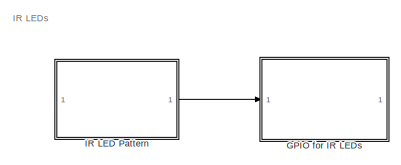
[diagram: root canvas - part 1/10, top right region]
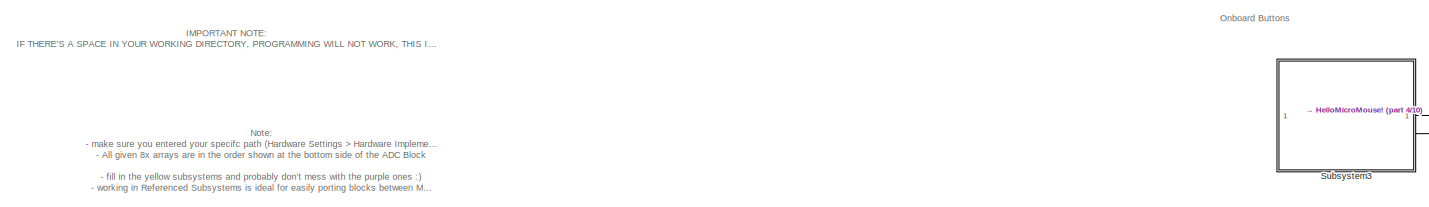
[diagram: root canvas - part 2/10, top center region]
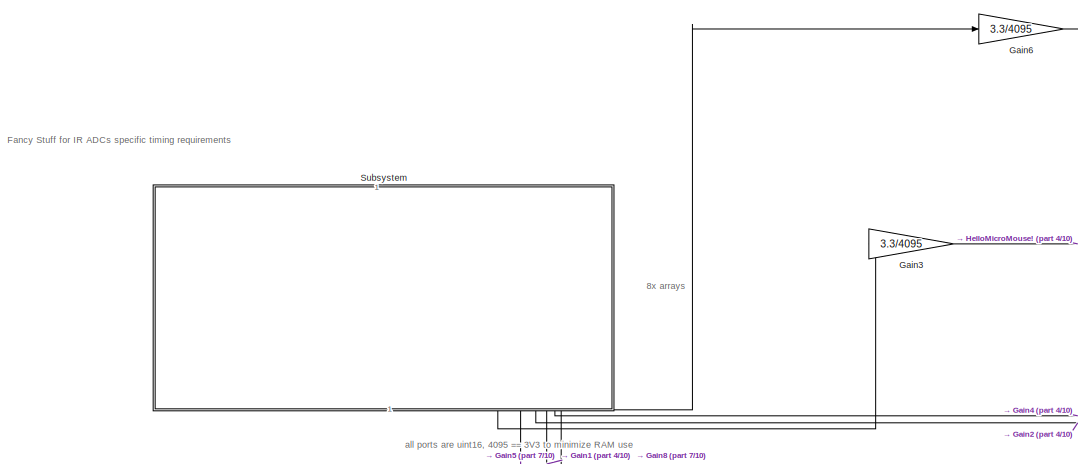
[diagram: root canvas - part 3/10, middle left region]
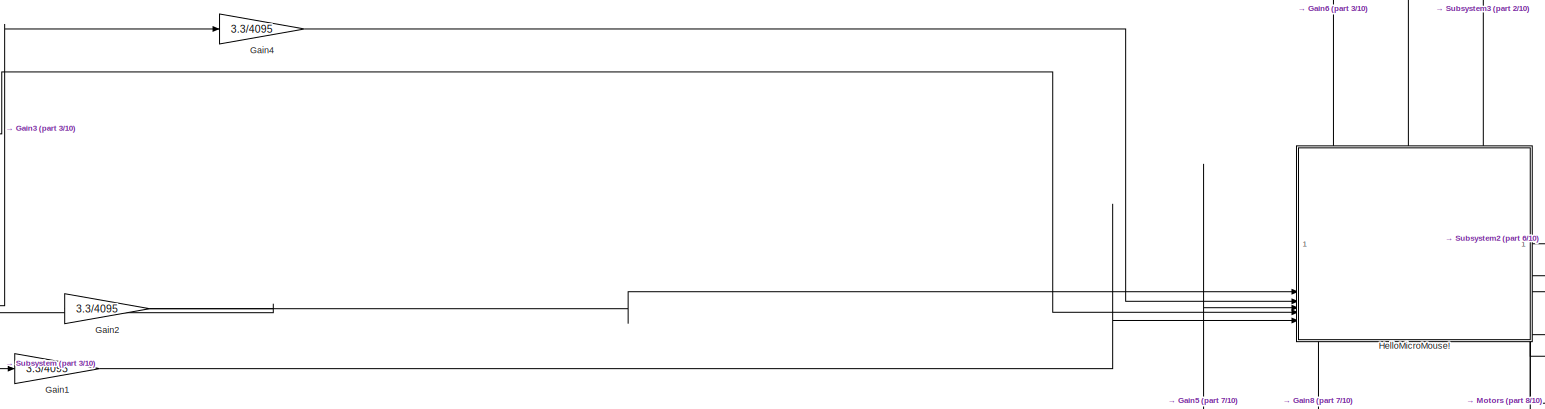
[diagram: root canvas - part 4/10, central region]
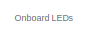
[diagram: root canvas - part 5/10, middle right region]
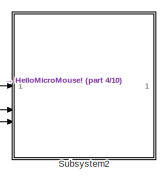
[diagram: root canvas - part 6/10, middle right region]
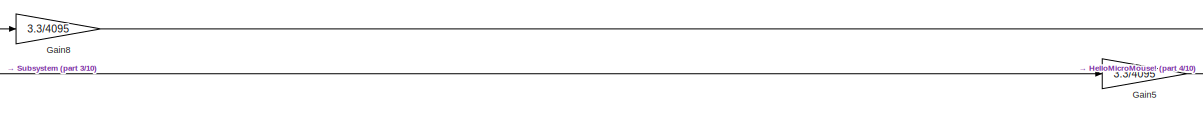
[diagram: root canvas - part 7/10, central region]
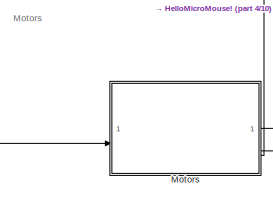
[diagram: root canvas - part 8/10, bottom right region]
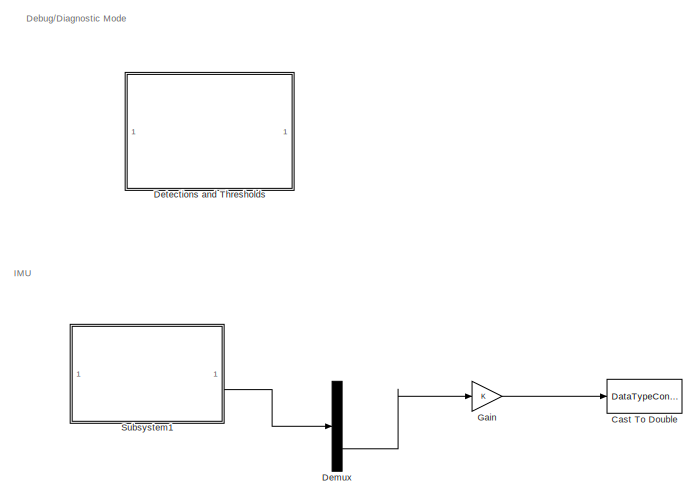
[diagram: root canvas - part 9/10, bottom left region]
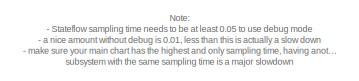
[diagram: root canvas - part 10/10, bottom center region]
MODEL slx_692beb6b2928
KIND model
CONFIG AbsTol = auto
CONFIG EnableMultiTasking = on
CONFIG FixedStep = auto
CONFIG MaxStep = auto
CONFIG MinStep = auto
CONFIG RelTol = 1e-3
CONFIG SampleTimeConstraint = Unconstrained
CONFIG SolverName = FixedStepAuto
CONFIG StartTime = 0.0
CONFIG StopTime = 0.1
BLOCK [DataTypeConversion] Cast To Double
  OutDataTypeStr = double
  RndMeth = Floor
  SaturateOnIntegerOverflow = off
BLOCK [Demux] Demux
  Outputs = 3
BLOCK [SubSystem] Detections and Thresholds
  ReferencedSubsystem = DiagnosticMode
BLOCK [SubSystem] GPIO for IR LEDs
  ReferencedSubsystem = IR_LEDs
  SystemSampleTime = samplingTime
  TreatAsAtomicUnit = on
BLOCK [Gain] Gain
BLOCK [Gain] Gain1
  Gain = 3.3/4095
  OutDataTypeStr = single
BLOCK [Gain] Gain2
  Gain = 3.3/4095
  OutDataTypeStr = single
BLOCK [Gain] Gain3
  Gain = 3.3/4095
  OutDataTypeStr = single
BLOCK [Gain] Gain4
  Gain = 3.3/4095
  OutDataTypeStr = single
BLOCK [Gain] Gain5
  Gain = 3.3/4095
  OutDataTypeStr = single
BLOCK [Gain] Gain6
  Gain = 3.3/4095
  OutDataTypeStr = single
BLOCK [Gain] Gain8
  Gain = 3.3/4095
  OutDataTypeStr = single
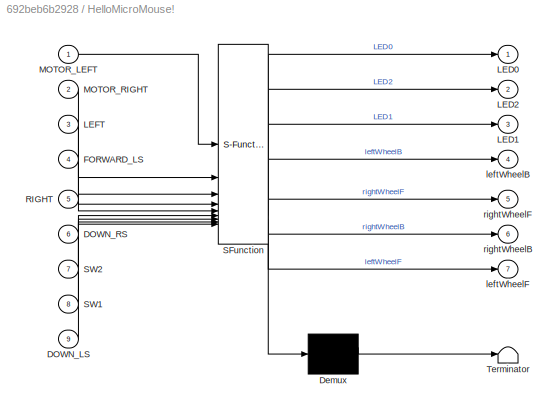
BLOCK [SubSystem] HelloMicroMouse!
  ErrorFcn = Stateflow.Translate.translate
  PermitHierarchicalResolution = ExplicitOnly
  PortSchema = {"entries":[{"content":{"sides":[{"content":{"connectorIds":["In5","In9","In4","In6","In3"]},"type":"ConnectorPlacement.EquallySpacedRectSide","uuid":"f52daa4f-6374-42e5-9ef1-0ccc99d09b58"},{"content":{"connectorIds":["Out1","Out2","Out3"],"side":"RIGHT"},"type":"ConnectorPlacement.EquallySpacedRectSide","uuid":"94b478cc-4dde-45c7-a588-77cf2b43cdb7"},{"content":{"connectorIds":["In2","In7","In8"],...<+472ch>
  SFBlockType = Chart
  TreatAsAtomicUnit = on
BLOCK [Demux] HelloMicroMouse!/ Demux 
  Outputs = 1
BLOCK [S-Function] HelloMicroMouse!/ SFunction 
  EnableBusSupport = on
  FunctionName = sf_sfun
  PortCounts = [9 8]
  SFcnIsStateOwnerBlock = off
  SFunctionDeploymentMode = off
  Tag = Stateflow S-Function 2
BLOCK [Terminator] HelloMicroMouse!/ Terminator 
BLOCK [Inport] HelloMicroMouse!/DOWN_LS
  Port = 9
BLOCK [Inport] HelloMicroMouse!/DOWN_RS
  Port = 6
BLOCK [Inport] HelloMicroMouse!/FORWARD_LS
  Port = 4
BLOCK [Outport] HelloMicroMouse!/LED0
BLOCK [Outport] HelloMicroMouse!/LED1
  Port = 3
BLOCK [Outport] HelloMicroMouse!/LED2
  Port = 2
BLOCK [Inport] HelloMicroMouse!/LEFT
  Port = 3
BLOCK [Inport] HelloMicroMouse!/MOTOR_LEFT
BLOCK [Inport] HelloMicroMouse!/MOTOR_RIGHT
  Port = 2
BLOCK [Inport] HelloMicroMouse!/RIGHT
  Port = 5
BLOCK [Inport] HelloMicroMouse!/SW1
  Port = 8
BLOCK [Inport] HelloMicroMouse!/SW2
  Port = 7
BLOCK [Outport] HelloMicroMouse!/leftWheelB
  Port = 4
BLOCK [Outport] HelloMicroMouse!/leftWheelF
  Port = 7
BLOCK [Outport] HelloMicroMouse!/rightWheelB
  Port = 6
BLOCK [Outport] HelloMicroMouse!/rightWheelF
  Port = 5
BLOCK [SubSystem] IR LED Pattern
  ReferencedSubsystem = IR_LED_Pattern
BLOCK [SubSystem] Motors
  PortSchema = {"entries":[{"content":{"sides":[{"content":{"connectorIds":["In2"]},"type":"ConnectorPlacement.EquallySpacedRectSide","uuid":"bdd6fda3-7e00-416f-94f9-e16bb6cad3a7"},{"content":{"connectorIds":["In1"],"side":"RIGHT"},"type":"ConnectorPlacement.EquallySpacedRectSide","uuid":"976ec5aa-4295-418a-9a6a-f21268880cf4"},{"content":{"connectorIds":["In4","In3"],"side":"TOP"},"type":"ConnectorPlacement.Equa...<+250ch>
  ReferencedSubsystem = Motors
BLOCK [SubSystem] Subsystem
  PortSchema = {"entries":[{"content":{"sides":[{"content":{},"type":"ConnectorPlacement.EquallySpacedRectSide","uuid":"be6b81d5-7a49-4e34-b35f-0c07892094fc"},{"content":{"connectorIds":["Out7","Out1","Out2","Out3","Out4","Out5","Out6","Out8"],"side":"RIGHT"},"type":"ConnectorPlacement.EquallySpacedRectSide","uuid":"5e22590a-b7c0-4c63-8de4-8d81fd6c3849"},{"content":{"connectorIds":["Out12","Out10","Out11"],"side...<+440ch>
  ReferencedSubsystem = ADC_Block
BLOCK [SubSystem] Subsystem1
  ReferencedSubsystem = IMU
BLOCK [SubSystem] Subsystem2
  ReferencedSubsystem = LEDs
BLOCK [SubSystem] Subsystem3
  ReferencedSubsystem = SWs
ANNOTATION (root): 8x arrays
ANNOTATION (root): IMPORTANT NOTE: IF THERE'S A SPACE IN YOUR WORKING DIRECTORY, PROGRAMMING WILL NOT WORK, THIS INCLUDES A SPACE IN YOUR PC's USERNAME (Space is an argument delimiter for terminal things)
ANNOTATION (root): Note: - Stateflow sampling time needs to be at least 0.05 to use debug mode - a nice amount without debug is 0.01, less than this is actually a slow down - make sure your main chart has the highest and only sampling time, having another subsystem with the same sampling time is a major slowdown
ANNOTATION (root): Debug/Diagnostic Mode
ANNOTATION (root): Fancy Stuff for IR ADCs specific timing requirements
ANNOTATION (root): IMU
ANNOTATION (root): IR LEDs
ANNOTATION (root): Motors
ANNOTATION (root): Note: - make sure you entered your specifc path (Hardware Settings > Hardware Implementation) to the given MicroMouseProgramming.ioc - All given 8x arrays are in the order shown at the bottom side of the ADC Block - fill in the yellow subsystems and probably don't mess with the purple ones :) - working in Referenced Subsystems is ideal for easily porting blocks between MATLAB instances, and openin...<+127ch>
ANNOTATION (root): Onboard Buttons
ANNOTATION (root): Onboard LEDs
ANNOTATION (root): all ports are uint16, 4095 == 3V3 to minimize RAM use
LINE Demux:3 -> Gain:1
LINE Gain1:1 -> HelloMicroMouse!:9
LINE Gain2:1 -> HelloMicroMouse!:3
LINE Gain3:1 -> HelloMicroMouse!:6
LINE Gain4:1 -> HelloMicroMouse!:4
LINE Gain5:1 -> HelloMicroMouse!:5
LINE Gain6:1 -> HelloMicroMouse!:2
LINE Gain8:1 -> HelloMicroMouse!:1
LINE Gain:1 -> Cast To Double:1
LINE HelloMicroMouse!:1 -> Subsystem2:1
LINE HelloMicroMouse!:2 -> Subsystem2:2
LINE HelloMicroMouse!:3 -> Subsystem2:3
LINE HelloMicroMouse!:4 -> Motors:2
LINE HelloMicroMouse!:5 -> Motors:4
LINE HelloMicroMouse!:6 -> Motors:3
LINE HelloMicroMouse!:7 -> Motors:1
LINE IR LED Pattern:1 -> GPIO for IR LEDs:1
LINE Subsystem1:2 -> Demux:1
LINE Subsystem3:1 -> HelloMicroMouse!:8
LINE Subsystem3:2 -> HelloMicroMouse!:7
LINE Subsystem:1 -> Gain6:1
LINE Subsystem:3 -> Gain3:1
LINE Subsystem:4 -> Gain5:1
LINE Subsystem:5 -> Gain2:1
LINE Subsystem:6 -> Gain1:1
LINE Subsystem:7 -> Gain4:1
LINE Subsystem:8 -> Gain8:1
CHART HelloMicroMouse! states=9 transitions=14
  STATE_LABEL 'main\nentry:'
  STATE_LABEL 'UTurn\nentry,during:\nleftWheelB = 3500;\nrightWheelF = 3500;\nleftWheelF =0;\nrightWheelB =0;\n'
  STATE_LABEL 'LeftTurn\nentry,during:\nleftWheelF = 0;\nleftWheelB = 3500;\nrightWheelF = 3500;\nrightWheelB = 0;'
  STATE_LABEL 'IdleState\nentry:\nrightWheelB = 0;\nleftWheelB = 0;\nrightWheelF = 0;\nleftWheelF =0;\nduring:\nif (RIGHT>=right)\n    LED2=true;\nend\nif (LEFT>=left)\n    LED0=true;\nend\nif (FORWARD_LS>=front)\n    LED1=true;\nend\nif ~(RIGHT>=right)\n    LED2=false;\nend\nif ~(LEFT>=left)\n    LED0=false;\nend\nif ~(FORWARD_LS>=front)\n    LED1=false;\nend\n'
  STATE_LABEL 'Initial\nentry:\nleftWheelB = 0;\nrightWheelB = 0;\nrightWheelF =0;\nleftWheelF =0;\n'
  STATE_LABEL 'RightTurn\nentry:\nrightWheelF =0;\nleftWheelB =0;\nrightWheelB = 4000;\nleftWheelF =4000;\n'
  STATE_LABEL 'MoveForward\nentry,during:\nrightWheelF =3500;\nrightWheelB =0;\nleftWheelF =3500;\nleftWheelB = 0;\n%code to sense walls\nif (RIGHT>=right-0.2)\n    LED2=true;\nend\nif (LEFT>=left-0.2)\n    LED0=true;\nend\nif (FORWARD_LS>=front*0.5)\n    LED1=true;\nend\nif ~(RIGHT>=right-0.2)\n    LED2=false;\nend\nif ~(LEFT>=left-0.2)\n    LED0=false;\nend\nif ~(FORWARD_LS>=front*0.5)\n    LED1=false;\nend\n'
  STATE_LABEL 'LineFollowing\nentry,during:\nif (DOWN_LS <= down_left)\n    leftWheelB = 0;\n    rightWheelF = 3500;\n    leftWheelF =3000;\n    rightWheelB =0;\nend\nif(DOWN_RS <down_right)\n    leftWheelB = 0;\n    rightWheelF = 3000;\n    leftWheelF =3500;\n    rightWheelB =0;\nend'
  STATE_LABEL '[FORWARD_LS >= front*0.5 && LEFT >=left && RIGHT >= right]'
  STATE_LABEL '[after(1,sec)]'
  STATE_LABEL 'after(1,sec)'
  STATE_LABEL '[LEFT >=left  && FORWARD_LS>= front  && RIGHT < right ]'
  STATE_LABEL '[SW2]'
  STATE_LABEL '[FORWARD_LS>=front && RIGHT>=right_threshold &&LEFT<left_threshold]'
  STATE_LABEL '[MOTOR_RIGHT > motor_right && MOTOR_LEFT > motor_left ]'
  STATE_LABEL '[MOTOR_RIGHT <= motor_right && MOTOR_LEFT <= motor_left]'
  STATE_LABEL '[after(1,sec)]'
  STATE_LABEL '[DOWN_LS >  DOWN_RS  || DOWN_LS < DOWN_RS && FORWARD_LS<front]'
  STATE_LABEL '[after(0.1,sec)]'
  STATE_LABEL 'UTurn\nentry,during:\nleftWheelB = 3500;\nrightWheelF = 3500;\nleftWheelF =0;\nrightWheelB =0;\n'
  STATE_LABEL 'LeftTurn\nentry,during:\nleftWheelF = 0;\nleftWheelB = 3500;\nrightWheelF = 3500;\nrightWheelB = 0;'
  STATE_LABEL 'IdleState\nentry:\nrightWheelB = 0;\nleftWheelB = 0;\nrightWheelF = 0;\nleftWheelF =0;\nduring:\nif (RIGHT>=right)\n    LED2=true;\nend\nif (LEFT>=left)\n    LED0=true;\nend\nif (FORWARD_LS>=front)\n    LED1=true;\nend\nif ~(RIGHT>=right)\n    LED2=false;\nend\nif ~(LEFT>=left)\n    LED0=false;\nend\nif ~(FORWARD_LS>=front)\n    LED1=false;\nend\n'
  STATE_LABEL 'Initial\nentry:\nleftWheelB = 0;\nrightWheelB = 0;\nrightWheelF =0;\nleftWheelF =0;\n'
  STATE_LABEL 'RightTurn\nentry:\nrightWheelF =0;\nleftWheelB =0;\nrightWheelB = 4000;\nleftWheelF =4000;\n'
  STATE_LABEL 'MoveForward\nentry,during:\nrightWheelF =3500;\nrightWheelB =0;\nleftWheelF =3500;\nleftWheelB = 0;\n%code to sense walls\nif (RIGHT>=right-0.2)\n    LED2=true;\nend\nif (LEFT>=left-0.2)\n    LED0=true;\nend\nif (FORWARD_LS>=front*0.5)\n    LED1=true;\nend\nif ~(RIGHT>=right-0.2)\n    LED2=false;\nend\nif ~(LEFT>=left-0.2)\n    LED0=false;\nend\nif ~(FORWARD_LS>=front*0.5)\n    LED1=false;\nend\n'
  STATE_LABEL 'LineFollowing\nentry,during:\nif (DOWN_LS <= down_left)\n    leftWheelB = 0;\n    rightWheelF = 3500;\n    leftWheelF =3000;\n    rightWheelB =0;\nend\nif(DOWN_RS <down_right)\n    leftWheelB = 0;\n    rightWheelF = 3000;\n    leftWheelF =3500;\n    rightWheelB =0;\nend'
  STATE_LABEL 'WaitUntilButtonPressed\nduring:\nfront = FORWARD_LS;\nleft = LEFT;\nright = RIGHT;\nmotor_left = MOTOR_LEFT;\nmotor_right = MOTOR_RIGHT;\ndown_left = DOWN_LS;\ndown_right = DOWN_RS;'
CHART  states=0 transitions=0
